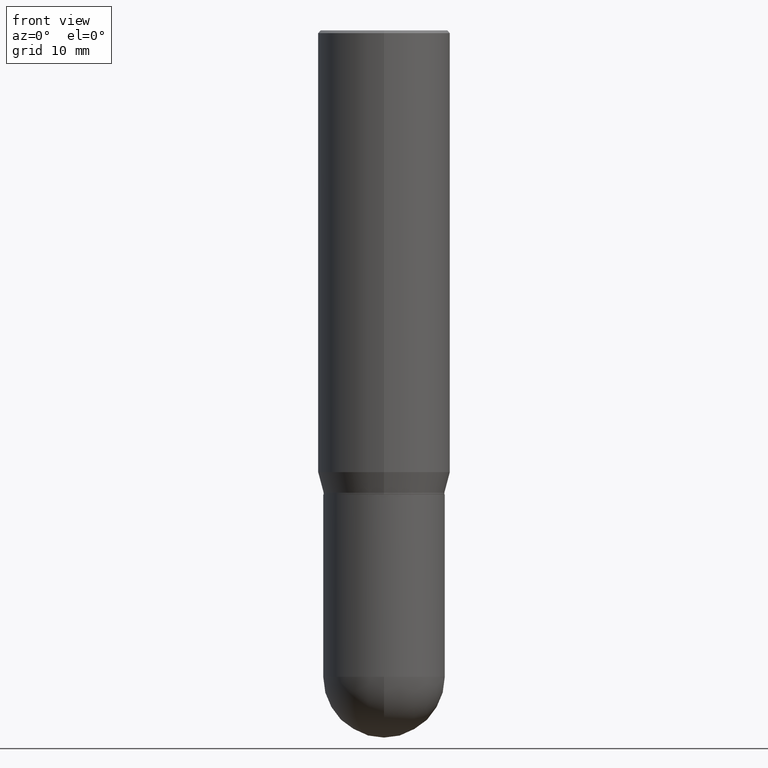
[diagram: clean part render]
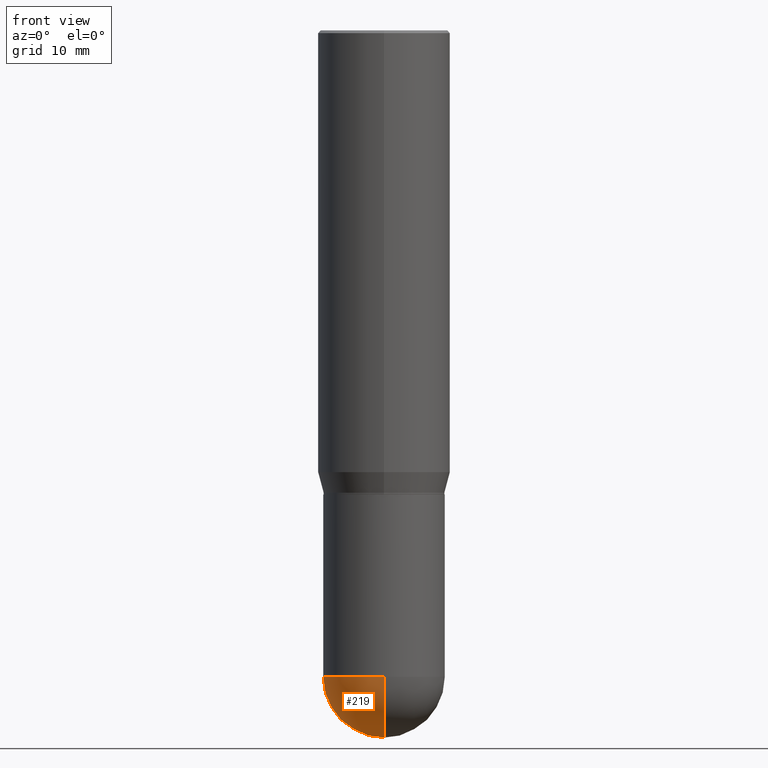
[diagram: same view with one face highlighted and labeled with its STEP entity id]
A machine part, front view. The second image highlights one B-rep face of the part: STEP entity #219.
In plain terms, the highlighted spherical surface has radius 8.7313 mm.
Its self-contained STEP definition (entity closure, byte-faithful):
#17 = SPHERICAL_SURFACE ( 'NONE', #201, 0.3437500000000002776 ) ;
#28 = CIRCLE ( 'NONE', #423, 0.3437500000000001665 ) ;
#40 = ORIENTED_EDGE ( 'NONE', *, *, #336, .F. ) ;
#41 = DIRECTION ( 'NONE',  ( 1.000000000000000000, -6.982962677686265922E-15, 0.000000000000000000 ) ) ;
#52 = AXIS2_PLACEMENT_3D ( 'NONE', #316, #397, #465 ) ;
#56 = DIRECTION ( 'NONE',  ( -1.000000000000000000, 6.982962677686265922E-15, -4.883557194083112340E-29 ) ) ;
#66 = CARTESIAN_POINT ( 'NONE',  ( 8.941245322614405682E-29, -1.276572864514525169E-14, -3.656250000000000000 ) ) ;
#71 = EDGE_CURVE ( 'NONE', #282, #123, #301, .T. ) ;
#95 = ORIENTED_EDGE ( 'NONE', *, *, #135, .T. ) ;
#102 = CIRCLE ( 'NONE', #142, 0.3437500000000001665 ) ;
#123 = VERTEX_POINT ( 'NONE', #147 ) ;
#135 = EDGE_CURVE ( 'NONE', #282, #314, #373, .T. ) ;
#142 = AXIS2_PLACEMENT_3D ( 'NONE', #270, #189, #41 ) ;
#147 = CARTESIAN_POINT ( 'NONE',  ( 2.400393420454744901E-15, 0.3437499999999875100, -3.656250000000001332 ) ) ;
#164 = EDGE_LOOP ( 'NONE', ( #430, #95, #326, #40 ) ) ;
#168 = CARTESIAN_POINT ( 'NONE',  ( -0.3437500000000001665, -8.522942925628910551E-15, -3.656250000000000000 ) ) ;
#189 = DIRECTION ( 'NONE',  ( -2.445468806185136597E-29, 3.491481338843145583E-15, 1.000000000000000000 ) ) ;
#200 = VERTEX_POINT ( 'NONE', #168 ) ;
#201 = AXIS2_PLACEMENT_3D ( 'NONE', #332, #56, #481 ) ;
#219 = ADVANCED_FACE ( 'NONE', ( #335 ), #17, .T. ) ;
#265 = CARTESIAN_POINT ( 'NONE',  ( -2.442490654175256037E-15, -0.3437500000000129896, -3.656249999999999112 ) ) ;
#270 = CARTESIAN_POINT ( 'NONE',  ( 8.941245322614405682E-29, -1.276572864514525169E-14, -3.656250000000000000 ) ) ;
#282 = VERTEX_POINT ( 'NONE', #292 ) ;
#287 = CARTESIAN_POINT ( 'NONE',  ( 8.997365610341803547E-29, -1.268536119895120754E-14, -3.656250000000000000 ) ) ;
#292 = CARTESIAN_POINT ( 'NONE',  ( 9.852693683063216430E-29, -1.386450929231819505E-14, -4.000000000000000888 ) ) ;
#301 = CIRCLE ( 'NONE', #489, 0.3437500000000002776 ) ;
#314 = VERTEX_POINT ( 'NONE', #265 ) ;
#316 = CARTESIAN_POINT ( 'NONE',  ( 8.997365610341803547E-29, -1.268536119895120754E-14, -3.656250000000000000 ) ) ;
#326 = ORIENTED_EDGE ( 'NONE', *, *, #491, .F. ) ;
#332 = CARTESIAN_POINT ( 'NONE',  ( 8.997365610341803547E-29, -1.268536119895120754E-14, -3.656250000000000000 ) ) ;
#335 = FACE_OUTER_BOUND ( 'NONE', #164, .T. ) ;
#336 = EDGE_CURVE ( 'NONE', #123, #200, #28, .T. ) ;
#339 = DIRECTION ( 'NONE',  ( -2.445468806185136597E-29, 3.491481338843145583E-15, 1.000000000000000000 ) ) ;
#355 = DIRECTION ( 'NONE',  ( 6.982962677686265922E-15, 1.000000000000000000, 0.000000000000000000 ) ) ;
#373 = CIRCLE ( 'NONE', #52, 0.3437500000000002776 ) ;
#380 = DIRECTION ( 'NONE',  ( 1.000000000000000000, -6.982962677686265922E-15, 0.000000000000000000 ) ) ;
#397 = DIRECTION ( 'NONE',  ( -1.000000000000000000, 7.105427357601001070E-15, -4.926315508542082329E-29 ) ) ;
#423 = AXIS2_PLACEMENT_3D ( 'NONE', #66, #339, #380 ) ;
#429 = DIRECTION ( 'NONE',  ( 1.000000000000000000, -6.982962677686265922E-15, 4.883557194083112340E-29 ) ) ;
#430 = ORIENTED_EDGE ( 'NONE', *, *, #71, .F. ) ;
#465 = DIRECTION ( 'NONE',  ( -7.105427357600999492E-15, -1.000000000000000000, 0.000000000000000000 ) ) ;
#481 = DIRECTION ( 'NONE',  ( 6.982962677686265922E-15, 1.000000000000000000, -3.178877665354776508E-15 ) ) ;
#489 = AXIS2_PLACEMENT_3D ( 'NONE', #287, #429, #355 ) ;
#491 = EDGE_CURVE ( 'NONE', #200, #314, #102, .T. ) ;